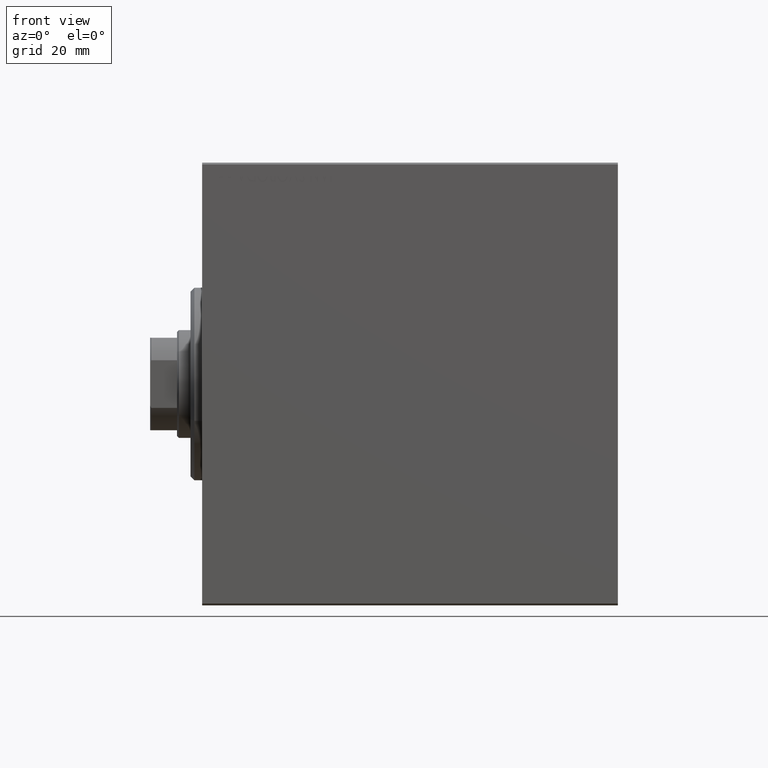
[diagram: clean part render]
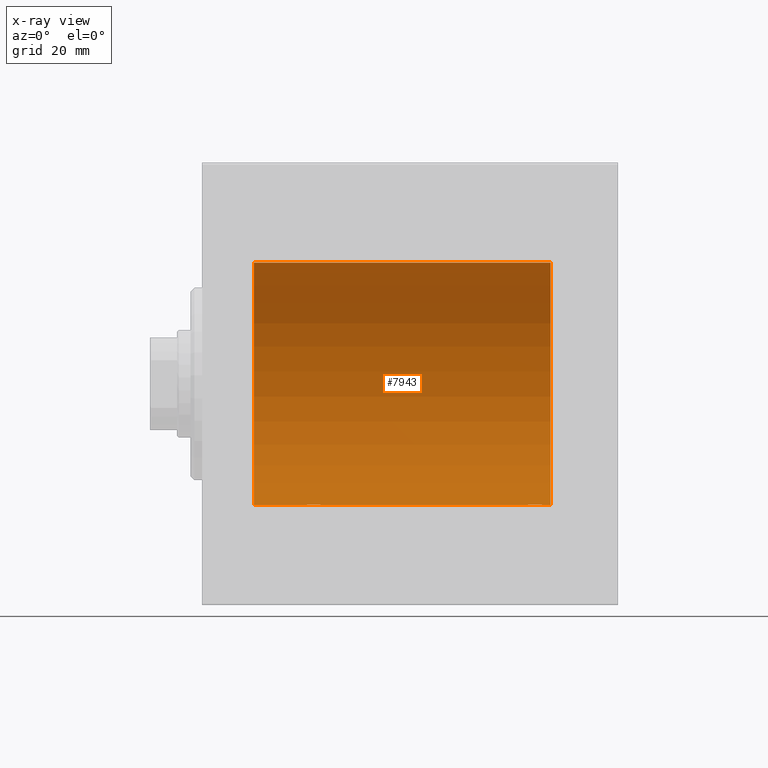
[diagram: x-ray — body ghosted, one internal face saturated and labeled with its STEP entity id]
A machine part, front view, then the same camera in x-ray: the body is ghosted and one INTERNAL B-rep face — a face not visible from any outside direction — is saturated and labeled: STEP entity #7943.
In plain terms, the highlighted cylindrical surface (partial cylindrical patch) has radius 31.5 mm, axis along (-1, -0, -0).
Its self-contained STEP definition (entity closure, byte-faithful):
#109 = CARTESIAN_POINT ( 'NONE',  ( 26.09576193370264718, 0.7769457993854247402, -31.49100119919085472 ) ) ;
#188 = DIRECTION ( 'NONE',  ( 0.000000000000000000, 0.000000000000000000, 1.000000000000000000 ) ) ;
#329 = CARTESIAN_POINT ( 'NONE',  ( 30.82938585467129400, 2.385694485610535320, -31.40971707706042437 ) ) ;
#446 = VECTOR ( 'NONE', #36574, 1000.000000000000000 ) ;
#579 = AXIS2_PLACEMENT_3D ( 'NONE', #17153, #24288, #188 ) ;
#1428 = CARTESIAN_POINT ( 'NONE',  ( 87.46552780442063124, 2.847177118681587071, -31.37115363072576102 ) ) ;
#1466 = ORIENTED_EDGE ( 'NONE', *, *, #34947, .T. ) ;
#3331 = EDGE_CURVE ( 'NONE', #26254, #36659, #35440, .T. ) ;
#3895 = CARTESIAN_POINT ( 'NONE',  ( 31.60235869613065063, 1.505293155307500852, -31.46443304312125022 ) ) ;
#4545 = CARTESIAN_POINT ( 'NONE',  ( 88.76105917453936911, 1.981627308739911886, -31.43792063499533640 ) ) ;
#5263 = CARTESIAN_POINT ( 'NONE',  ( 13.49999999999999822, 3.857637417314162689E-15, -31.50000000000000000 ) ) ;
#5848 = B_SPLINE_CURVE_WITH_KNOTS ( 'NONE', 3,
 ( #23984, #41373, #17295, #109, #20862, #13719, #34445, #13504, #20644, #34229, #34006, #17739, #16850, #10606, #27989, #27325, #23760, #20204, #41146, #30445, #14381, #30884, #10828, #329, #41579, #37359, #14164, #3895, #17513, #24426, #40915, #6582, #31332, #37583 ),
 .UNSPECIFIED., .F., .F.,
 ( 4, 2, 2, 2, 2, 2, 2, 2, 2, 2, 2, 2, 2, 2, 2, 2, 4 ),
 ( 3.873361061910112284E-19, 0.0005865426616959168189, 0.001173085323391833204, 0.001759627985087749589, 0.002346170646783665974, 0.002932713308479582576, 0.003519255970175498745, 0.004105798631871414479, 0.004692341293567331081, 0.005278883955263247683, 0.005865426616959164285, 0.006451969278655080020, 0.007038511940350996622, 0.007625054602046913224, 0.008211597263742828959, 0.008798139925438746428, 0.009384682587134662163 ),
 .UNSPECIFIED. ) ;
#6370 = CARTESIAN_POINT ( 'NONE',  ( 83.49999999999995737, 0.1983379036618822255, -31.49999999999999289 ) ) ;
#6582 = CARTESIAN_POINT ( 'NONE',  ( 31.98037035466297340, 0.3947854228308261271, -31.49811339059600002 ) ) ;
#7558 = LINE ( 'NONE', #25620, #23175 ) ;
#7694 = CARTESIAN_POINT ( 'NONE',  ( 89.48037035466298050, 0.3947854228308289026, -31.49811339059599291 ) ) ;
#7824 = EDGE_LOOP ( 'NONE', ( #13186, #29276, #1466, #32039, #16373, #20463, #41278, #10710 ) ) ;
#7943 = ADVANCED_FACE ( 'NONE', ( #11948 ), #31201, .F. ) ;
#8313 = CIRCLE ( 'NONE', #41102, 31.50000000000000000 ) ;
#9917 = DIRECTION ( 'NONE',  ( -1.000000000000000000, -0.000000000000000000, -0.000000000000000000 ) ) ;
#10158 = CARTESIAN_POINT ( 'NONE',  ( 83.49999999999998579, -1.354660151018645615E-14, -31.50000000000000000 ) ) ;
#10379 = CARTESIAN_POINT ( 'NONE',  ( 83.51947518102491586, 0.3933386891556544529, -31.49812829325315988 ) ) ;
#10606 = CARTESIAN_POINT ( 'NONE',  ( 28.03183834159290555, 2.846197268611679654, -31.37124163027859325 ) ) ;
#10710 = ORIENTED_EDGE ( 'NONE', *, *, #3331, .T. ) ;
#10828 = CARTESIAN_POINT ( 'NONE',  ( 30.50442346703924557, 2.602863964129811691, -31.39246667950590464 ) ) ;
#11037 = CARTESIAN_POINT ( 'NONE',  ( 84.24075096623262482, 1.983444873066703584, -31.43779820687992554 ) ) ;
#11948 = FACE_OUTER_BOUND ( 'NONE', #7824, .T. ) ;
#13186 = ORIENTED_EDGE ( 'NONE', *, *, #21628, .F. ) ;
#13504 = CARTESIAN_POINT ( 'NONE',  ( 26.61408373360524138, 1.829162098167812056, -31.44727042639135917 ) ) ;
#13719 = CARTESIAN_POINT ( 'NONE',  ( 26.30416028199503131, 1.330832861354125818, -31.47239936387596160 ) ) ;
#14164 = CARTESIAN_POINT ( 'NONE',  ( 31.38511957348212533, 1.830131931565279535, -31.44721086712685931 ) ) ;
#14166 = CARTESIAN_POINT ( 'NONE',  ( 89.19631813776284446, 1.329867798385264255, -31.47244047903475206 ) ) ;
#14189 = CARTESIAN_POINT ( 'NONE',  ( 83.49999999999998579, -1.354660151018645615E-14, -31.50000000000000000 ) ) ;
#14381 = CARTESIAN_POINT ( 'NONE',  ( 29.96552780442064545, 2.847177118681580854, -31.37115363072576102 ) ) ;
#14382 = CARTESIAN_POINT ( 'NONE',  ( 84.66841163972637219, 2.384155341399016859, -31.40983767558391193 ) ) ;
#14464 = CARTESIAN_POINT ( 'NONE',  ( 89.50000000000000000, 3.857637396143758955E-15, -31.50000000000000000 ) ) ;
#14506 = VECTOR ( 'NONE', #18234, 1000.000000000000000 ) ;
#14579 = VERTEX_POINT ( 'NONE', #32256 ) ;
#14594 = CARTESIAN_POINT ( 'NONE',  ( 86.10837341225169439, 2.980875975682589551, -31.35866508162785848 ) ) ;
#15032 = CARTESIAN_POINT ( 'NONE',  ( 88.48088699125005974, 2.261707786034459211, -31.41901301017587755 ) ) ;
#15362 = EDGE_CURVE ( 'NONE', #26254, #33847, #28707, .T. ) ;
#16271 = CARTESIAN_POINT ( 'NONE',  ( 32.00000000000000000, 3.857637396137448068E-15, -31.50000000000000000 ) ) ;
#16373 = ORIENTED_EDGE ( 'NONE', *, *, #30368, .F. ) ;
#16822 = LINE ( 'NONE', #32893, #35352 ) ;
#16850 = CARTESIAN_POINT ( 'NONE',  ( 27.67084398834996506, 2.696575640577645316, -31.38445666459465500 ) ) ;
#17153 = CARTESIAN_POINT ( 'NONE',  ( 90.50000000000000000, 0.000000000000000000, 0.000000000000000000 ) ) ;
#17295 = CARTESIAN_POINT ( 'NONE',  ( 26.01947518102491230, 0.3933386891556586162, -31.49812829325316343 ) ) ;
#17513 = CARTESIAN_POINT ( 'NONE',  ( 31.69631813776284446, 1.329867798385262478, -31.47244047903475206 ) ) ;
#17514 = CARTESIAN_POINT ( 'NONE',  ( 85.53183834159290200, 2.846197268611682762, -31.37124163027859325 ) ) ;
#17739 = CARTESIAN_POINT ( 'NONE',  ( 27.49636865155423138, 2.603460270751690953, -31.39242096616744249 ) ) ;
#18234 = DIRECTION ( 'NONE',  ( -1.000000000000000000, -0.000000000000000000, -0.000000000000000000 ) ) ;
#18389 = CARTESIAN_POINT ( 'NONE',  ( 86.89359598051107980, 2.980533683278883128, -31.35869737338551388 ) ) ;
#18679 = CARTESIAN_POINT ( 'NONE',  ( 90.50000000000000000, 3.857637417314162689E-15, -31.50000000000000000 ) ) ;
#19570 = VERTEX_POINT ( 'NONE', #28522 ) ;
#19823 = CIRCLE ( 'NONE', #579, 31.50000000000000000 ) ;
#20204 = CARTESIAN_POINT ( 'NONE',  ( 29.19470749274824684, 3.000070712257530747, -31.35681067529873189 ) ) ;
#20463 = ORIENTED_EDGE ( 'NONE', *, *, #32543, .T. ) ;
#20644 = CARTESIAN_POINT ( 'NONE',  ( 26.74075096623263548, 1.983444873066705805, -31.43779820687992554 ) ) ;
#20663 = VERTEX_POINT ( 'NONE', #5263 ) ;
#20862 = CARTESIAN_POINT ( 'NONE',  ( 26.15350786472692235, 0.9675486622706063189, -31.48566161620712478 ) ) ;
#21175 = DIRECTION ( 'NONE',  ( -1.000000000000000000, -0.000000000000000000, -0.000000000000000000 ) ) ;
#21307 = CARTESIAN_POINT ( 'NONE',  ( 89.50000000000000000, 3.857637396143758955E-15, -31.50000000000000000 ) ) ;
#21524 = VERTEX_POINT ( 'NONE', #30758 ) ;
#21529 = CARTESIAN_POINT ( 'NONE',  ( 88.00442346703925978, 2.602863964129814356, -31.39246667950590464 ) ) ;
#21628 = EDGE_CURVE ( 'NONE', #14579, #36659, #7558, .T. ) ;
#21740 = CARTESIAN_POINT ( 'NONE',  ( 86.30311953966651117, 2.999928894260098122, -31.35682424344752306 ) ) ;
#22991 = CARTESIAN_POINT ( 'NONE',  ( 90.50000000000000000, 3.857637417314162689E-15, -31.50000000000000000 ) ) ;
#23175 = VECTOR ( 'NONE', #21175, 1000.000000000000000 ) ;
#23421 = LINE ( 'NONE', #22991, #446 ) ;
#23760 = CARTESIAN_POINT ( 'NONE',  ( 28.80311953966651828, 2.999928894260095014, -31.35682424344752306 ) ) ;
#23761 = CARTESIAN_POINT ( 'NONE',  ( 83.59576193370266139, 0.7769457993854218536, -31.49100119919086183 ) ) ;
#23984 = CARTESIAN_POINT ( 'NONE',  ( 26.00000000000000355, -6.595038141055444136E-15, -31.50000000000000000 ) ) ;
#23986 = CARTESIAN_POINT ( 'NONE',  ( 83.65350786472691880, 0.9675486622706027662, -31.48566161620712478 ) ) ;
#24231 = AXIS2_PLACEMENT_3D ( 'NONE', #25781, #27640, #39159 ) ;
#24288 = DIRECTION ( 'NONE',  ( -1.000000000000000000, 0.000000000000000000, 0.000000000000000000 ) ) ;
#24426 = CARTESIAN_POINT ( 'NONE',  ( 31.84686001605626515, 0.9664718879465930002, -31.48569500832682522 ) ) ;
#24640 = CARTESIAN_POINT ( 'NONE',  ( 87.82888955715861812, 2.696796994793646984, -31.38443855856933595 ) ) ;
#24864 = CARTESIAN_POINT ( 'NONE',  ( 86.69470749274820776, 3.000070712257535632, -31.35681067529872479 ) ) ;
#25620 = CARTESIAN_POINT ( 'NONE',  ( 90.50000000000000000, 3.857637417314162689E-15, -31.50000000000000000 ) ) ;
#25781 = CARTESIAN_POINT ( 'NONE',  ( 90.50000000000000000, 0.000000000000000000, 0.000000000000000000 ) ) ;
#26254 = VERTEX_POINT ( 'NONE', #14189 ) ;
#26555 = DIRECTION ( 'NONE',  ( 0.000000000000000000, 0.000000000000000000, 1.000000000000000000 ) ) ;
#27325 = CARTESIAN_POINT ( 'NONE',  ( 28.60837341225171215, 2.980875975682586443, -31.35866508162785848 ) ) ;
#27640 = DIRECTION ( 'NONE',  ( -1.000000000000000000, -0.000000000000000000, -0.000000000000000000 ) ) ;
#27989 = CARTESIAN_POINT ( 'NONE',  ( 28.22102991406854500, 2.903824817694228067, -31.36589387714387200 ) ) ;
#27990 = CARTESIAN_POINT ( 'NONE',  ( 85.72102991406853789, 2.903824817694229399, -31.36589387714387200 ) ) ;
#28198 = CARTESIAN_POINT ( 'NONE',  ( 84.99636865155420651, 2.603460270751694949, -31.39242096616744249 ) ) ;
#28522 = CARTESIAN_POINT ( 'NONE',  ( 90.50000000000000000, 0.000000000000000000, 31.50000000000000000 ) ) ;
#28637 = CARTESIAN_POINT ( 'NONE',  ( 89.10235869613066484, 1.505293155307507513, -31.46443304312125022 ) ) ;
#28707 = LINE ( 'NONE', #18679, #14506 ) ;
#29276 = ORIENTED_EDGE ( 'NONE', *, *, #39438, .F. ) ;
#30368 = EDGE_CURVE ( 'NONE', #31567, #20663, #23421, .T. ) ;
#30445 = CARTESIAN_POINT ( 'NONE',  ( 29.77845839476659862, 2.903876953428271346, -31.36588880666517909 ) ) ;
#30758 = CARTESIAN_POINT ( 'NONE',  ( 13.49999999999999822, 0.000000000000000000, 31.50000000000000000 ) ) ;
#30884 = CARTESIAN_POINT ( 'NONE',  ( 30.32888955715863943, 2.696796994793641211, -31.38443855856935016 ) ) ;
#31021 = EDGE_CURVE ( 'NONE', #21524, #20663, #8313, .T. ) ;
#31111 = CARTESIAN_POINT ( 'NONE',  ( 88.32938585467127268, 2.385694485610538873, -31.40971707706042437 ) ) ;
#31201 = CYLINDRICAL_SURFACE ( 'NONE', #24231, 31.50000000000000000 ) ;
#31332 = CARTESIAN_POINT ( 'NONE',  ( 32.00000000000000711, 0.1958503357044868443, -31.50000000000000711 ) ) ;
#31334 = CARTESIAN_POINT ( 'NONE',  ( 84.11408373360522717, 1.829162098167810058, -31.44727042639135917 ) ) ;
#31547 = CARTESIAN_POINT ( 'NONE',  ( 84.51742588226801445, 2.260013192167870333, -31.41912713670170376 ) ) ;
#31567 = VERTEX_POINT ( 'NONE', #38938 ) ;
#31980 = CARTESIAN_POINT ( 'NONE',  ( 87.27845839476661638, 2.903876953428271790, -31.36588880666518619 ) ) ;
#32039 = ORIENTED_EDGE ( 'NONE', *, *, #31021, .T. ) ;
#32256 = CARTESIAN_POINT ( 'NONE',  ( 90.50000000000000000, 3.857637417314162689E-15, -31.50000000000000000 ) ) ;
#32543 = EDGE_CURVE ( 'NONE', #31567, #33847, #5848, .T. ) ;
#32893 = CARTESIAN_POINT ( 'NONE',  ( 90.50000000000000000, 0.000000000000000000, 31.50000000000000000 ) ) ;
#33578 = CARTESIAN_POINT ( 'NONE',  ( 83.80416028199505263, 1.330832861354123597, -31.47239936387597581 ) ) ;
#33847 = VERTEX_POINT ( 'NONE', #16271 ) ;
#34006 = CARTESIAN_POINT ( 'NONE',  ( 27.16841163972636508, 2.384155341399014638, -31.40983767558391193 ) ) ;
#34229 = CARTESIAN_POINT ( 'NONE',  ( 27.01742588226807129, 2.260013192167871221, -31.41912713670170376 ) ) ;
#34445 = CARTESIAN_POINT ( 'NONE',  ( 26.39633413559198871, 1.503114925126252777, -31.46454030768326149 ) ) ;
#34884 = CARTESIAN_POINT ( 'NONE',  ( 88.88511957348211467, 1.830131931565284864, -31.44721086712685931 ) ) ;
#34947 = EDGE_CURVE ( 'NONE', #19570, #21524, #16822, .T. ) ;
#35352 = VECTOR ( 'NONE', #9917, 1000.000000000000000 ) ;
#35440 = B_SPLINE_CURVE_WITH_KNOTS ( 'NONE', 3,
 ( #10158, #6370, #10379, #23761, #23986, #33578, #37360, #31334, #11037, #31547, #14382, #28198, #35544, #17514, #27990, #14594, #21740, #24864, #18389, #31980, #1428, #24640, #21529, #31111, #15032, #4545, #34884, #28637, #14166, #38465, #38247, #7694, #41580, #21307 ),
 .UNSPECIFIED., .F., .F.,
 ( 4, 2, 2, 2, 2, 2, 2, 2, 2, 2, 2, 2, 2, 2, 2, 2, 4 ),
 ( 7.959476811729351992E-19, 0.0005865426616959196378, 0.001173085323391838625, 0.001759627985087757179, 0.002346170646783675515, 0.002932713308479592985, 0.003519255970175510454, 0.004105798631871427490, 0.004692341293567344959, 0.005278883955263261561, 0.005865426616959179031, 0.006451969278655094765, 0.007038511940351012235, 0.007625054602046928837, 0.008211597263742844571, 0.008798139925438762041, 0.009384682587134677775 ),
 .UNSPECIFIED. ) ;
#35544 = CARTESIAN_POINT ( 'NONE',  ( 85.17084398834997216, 2.696575640577646205, -31.38445666459465500 ) ) ;
#36574 = DIRECTION ( 'NONE',  ( -1.000000000000000000, -0.000000000000000000, -0.000000000000000000 ) ) ;
#36659 = VERTEX_POINT ( 'NONE', #14464 ) ;
#36801 = DIRECTION ( 'NONE',  ( -1.000000000000000000, 0.000000000000000000, 0.000000000000000000 ) ) ;
#37359 = CARTESIAN_POINT ( 'NONE',  ( 31.26105917453941174, 1.981627308739911442, -31.43792063499534351 ) ) ;
#37360 = CARTESIAN_POINT ( 'NONE',  ( 83.89633413559197095, 1.503114925126249890, -31.46454030768326149 ) ) ;
#37583 = CARTESIAN_POINT ( 'NONE',  ( 32.00000000000000000, 3.857637396137448068E-15, -31.50000000000000000 ) ) ;
#38247 = CARTESIAN_POINT ( 'NONE',  ( 89.40360737870091157, 0.7794402936641400270, -31.49094275383852093 ) ) ;
#38465 = CARTESIAN_POINT ( 'NONE',  ( 89.34686001605625449, 0.9664718879465948875, -31.48569500832683232 ) ) ;
#38938 = CARTESIAN_POINT ( 'NONE',  ( 26.00000000000000355, -6.595038141055444136E-15, -31.50000000000000000 ) ) ;
#39159 = DIRECTION ( 'NONE',  ( 0.000000000000000000, 0.000000000000000000, 1.000000000000000000 ) ) ;
#39438 = EDGE_CURVE ( 'NONE', #19570, #14579, #19823, .T. ) ;
#40915 = CARTESIAN_POINT ( 'NONE',  ( 31.90360737870091157, 0.7794402936641380286, -31.49094275383852093 ) ) ;
#41102 = AXIS2_PLACEMENT_3D ( 'NONE', #43034, #36801, #26555 ) ;
#41146 = CARTESIAN_POINT ( 'NONE',  ( 29.39359598051107625, 2.980533683278880464, -31.35869737338551388 ) ) ;
#41278 = ORIENTED_EDGE ( 'NONE', *, *, #15362, .F. ) ;
#41373 = CARTESIAN_POINT ( 'NONE',  ( 26.00000000000000355, 0.1983379036618887203, -31.50000000000000000 ) ) ;
#41579 = CARTESIAN_POINT ( 'NONE',  ( 30.98088699125006684, 2.261707786034456991, -31.41901301017587755 ) ) ;
#41580 = CARTESIAN_POINT ( 'NONE',  ( 89.49999999999995737, 0.1958503357044857618, -31.50000000000000000 ) ) ;
#43034 = CARTESIAN_POINT ( 'NONE',  ( 13.49999999999999822, 0.000000000000000000, 0.000000000000000000 ) ) ;